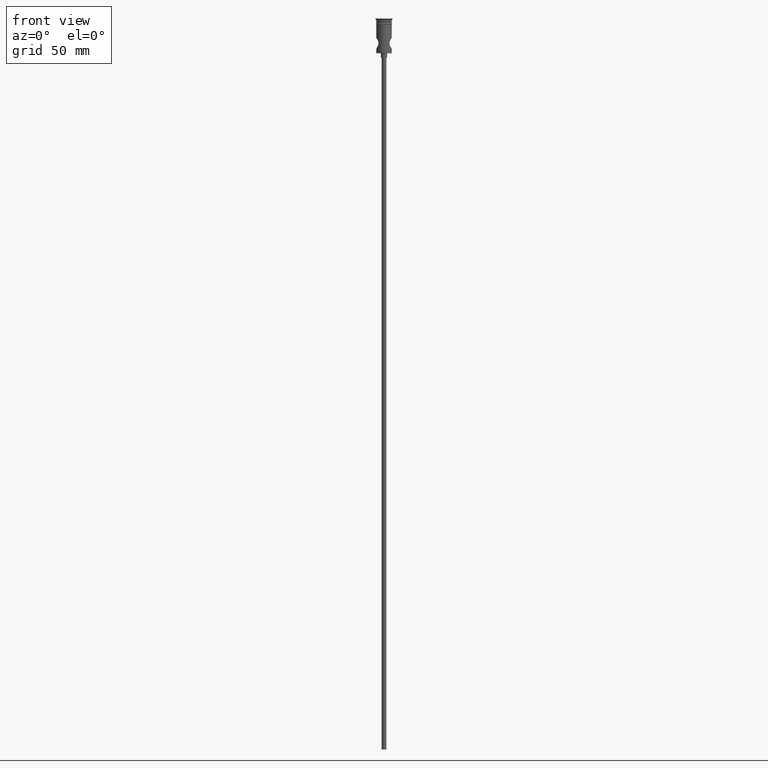
[diagram: clean part render]
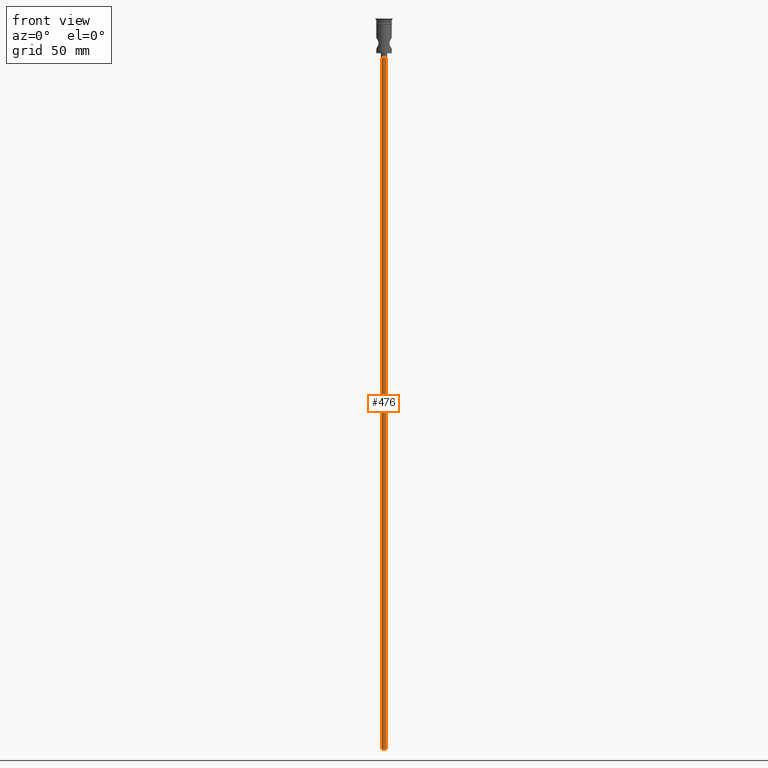
[diagram: same view with one face highlighted and labeled with its STEP entity id]
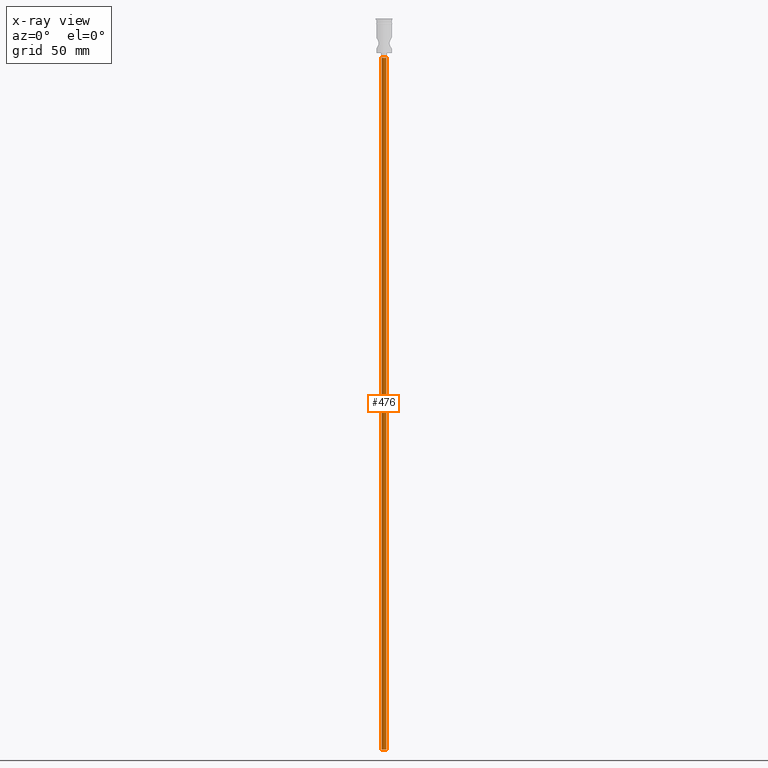
[diagram: x-ray of the same camera — body ghosted, the highlighted face saturated]
A machine part, front view. The second image highlights one B-rep face of the part: STEP entity #476.
The next image is the same camera in x-ray: the body ghosted, the highlighted face saturated — about 0% of this face is hidden behind the body in this view.
In plain terms, the highlighted cylindrical surface (edge-blend (fillet) strip) has radius 1.5 mm, axis along (-0, -0, 1).
Its self-contained STEP definition (entity closure, byte-faithful):
#2 = DIRECTION ( 'NONE',  ( 0.000000000000000000, 0.000000000000000000, -1.000000000000000000 ) ) ;
#47 = ORIENTED_EDGE ( 'NONE', *, *, #1319, .F. ) ;
#79 = DIRECTION ( 'NONE',  ( -0.000000000000000000, -0.000000000000000000, 1.000000000000000000 ) ) ;
#134 = VECTOR ( 'NONE', #1142, 1000.000000000000000 ) ;
#138 = CIRCLE ( 'NONE', #898, 1.500000000000000222 ) ;
#217 = CARTESIAN_POINT ( 'NONE',  ( 0.000000000000000000, 0.000000000000000000, -472.5000000000000568 ) ) ;
#231 = EDGE_CURVE ( 'NONE', #1271, #1287, #685, .T. ) ;
#273 = CIRCLE ( 'NONE', #372, 1.500000000000000222 ) ;
#274 = CARTESIAN_POINT ( 'NONE',  ( 1.500000000000000222, 0.000000000000000000, -25.50000000000000000 ) ) ;
#290 = DIRECTION ( 'NONE',  ( -0.000000000000000000, -0.000000000000000000, 1.000000000000000000 ) ) ;
#346 = CARTESIAN_POINT ( 'NONE',  ( 0.000000000000000000, 0.000000000000000000, -25.50000000000000000 ) ) ;
#359 = DIRECTION ( 'NONE',  ( -1.000000000000000000, 0.000000000000000000, 0.000000000000000000 ) ) ;
#361 = EDGE_CURVE ( 'NONE', #1271, #1044, #273, .T. ) ;
#372 = AXIS2_PLACEMENT_3D ( 'NONE', #217, #651, #359 ) ;
#374 = VECTOR ( 'NONE', #79, 1000.000000000000000 ) ;
#476 = ADVANCED_FACE ( 'NONE', ( #1401 ), #1059, .T. ) ;
#631 = EDGE_LOOP ( 'NONE', ( #47, #658, #726, #881 ) ) ;
#651 = DIRECTION ( 'NONE',  ( 0.000000000000000000, 0.000000000000000000, -1.000000000000000000 ) ) ;
#658 = ORIENTED_EDGE ( 'NONE', *, *, #361, .F. ) ;
#682 = VERTEX_POINT ( 'NONE', #1415 ) ;
#685 = LINE ( 'NONE', #1028, #134 ) ;
#726 = ORIENTED_EDGE ( 'NONE', *, *, #231, .T. ) ;
#744 = CARTESIAN_POINT ( 'NONE',  ( 0.000000000000000000, 0.000000000000000000, -472.5000000000000568 ) ) ;
#881 = ORIENTED_EDGE ( 'NONE', *, *, #1019, .T. ) ;
#887 = DIRECTION ( 'NONE',  ( -1.000000000000000000, 0.000000000000000000, 0.000000000000000000 ) ) ;
#898 = AXIS2_PLACEMENT_3D ( 'NONE', #346, #2, #887 ) ;
#971 = DIRECTION ( 'NONE',  ( 1.000000000000000000, 0.000000000000000000, 0.000000000000000000 ) ) ;
#1019 = EDGE_CURVE ( 'NONE', #1287, #682, #138, .T. ) ;
#1028 = CARTESIAN_POINT ( 'NONE',  ( 1.500000000000000222, 0.000000000000000000, -472.5000000000000568 ) ) ;
#1042 = CARTESIAN_POINT ( 'NONE',  ( -1.500000000000000222, 1.836970198721030181E-16, -472.5000000000000568 ) ) ;
#1044 = VERTEX_POINT ( 'NONE', #1262 ) ;
#1059 = CYLINDRICAL_SURFACE ( 'NONE', #1245, 1.500000000000000222 ) ;
#1142 = DIRECTION ( 'NONE',  ( -0.000000000000000000, -0.000000000000000000, 1.000000000000000000 ) ) ;
#1245 = AXIS2_PLACEMENT_3D ( 'NONE', #744, #290, #971 ) ;
#1262 = CARTESIAN_POINT ( 'NONE',  ( -1.500000000000000222, 1.836970198721030181E-16, -472.5000000000000568 ) ) ;
#1271 = VERTEX_POINT ( 'NONE', #1303 ) ;
#1287 = VERTEX_POINT ( 'NONE', #274 ) ;
#1303 = CARTESIAN_POINT ( 'NONE',  ( 1.500000000000000222, 0.000000000000000000, -472.5000000000000568 ) ) ;
#1319 = EDGE_CURVE ( 'NONE', #1044, #682, #1402, .T. ) ;
#1401 = FACE_OUTER_BOUND ( 'NONE', #631, .T. ) ;
#1402 = LINE ( 'NONE', #1042, #374 ) ;
#1415 = CARTESIAN_POINT ( 'NONE',  ( -1.500000000000000222, 1.836970198721030181E-16, -25.50000000000000000 ) ) ;